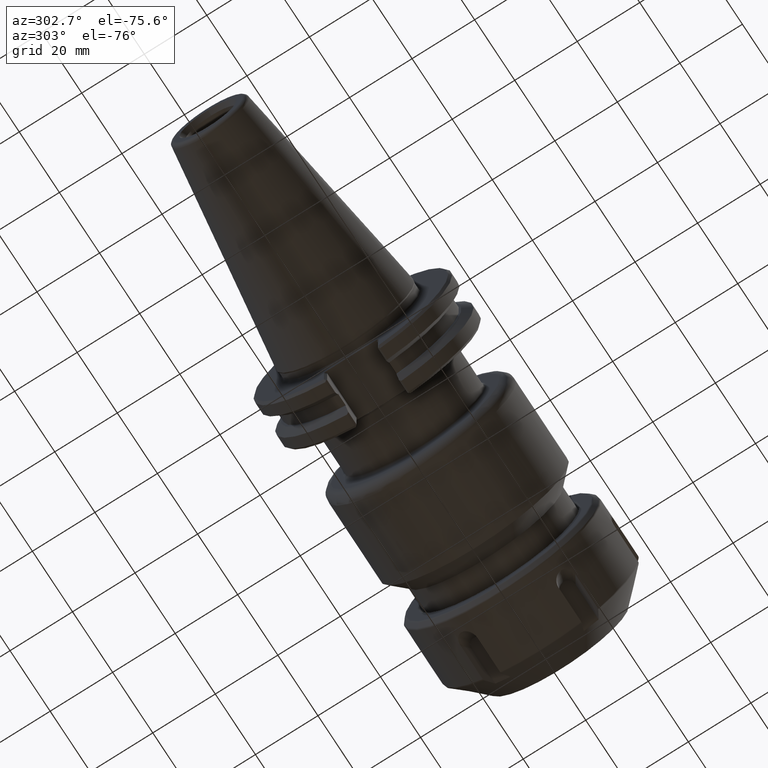
[diagram: clean part render]
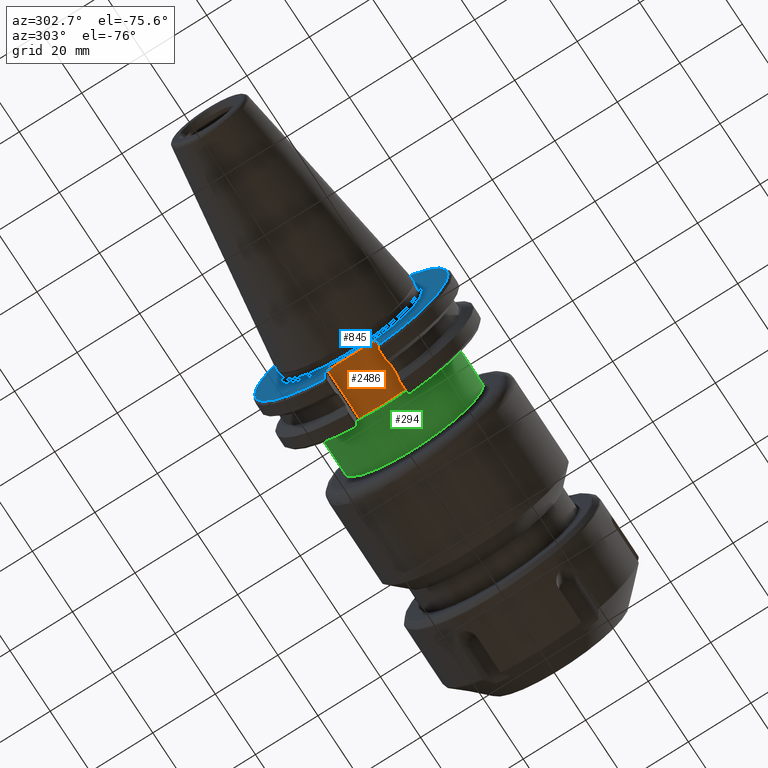
[diagram: same view with three faces highlighted in distinct colors, each labeled with its STEP entity id]
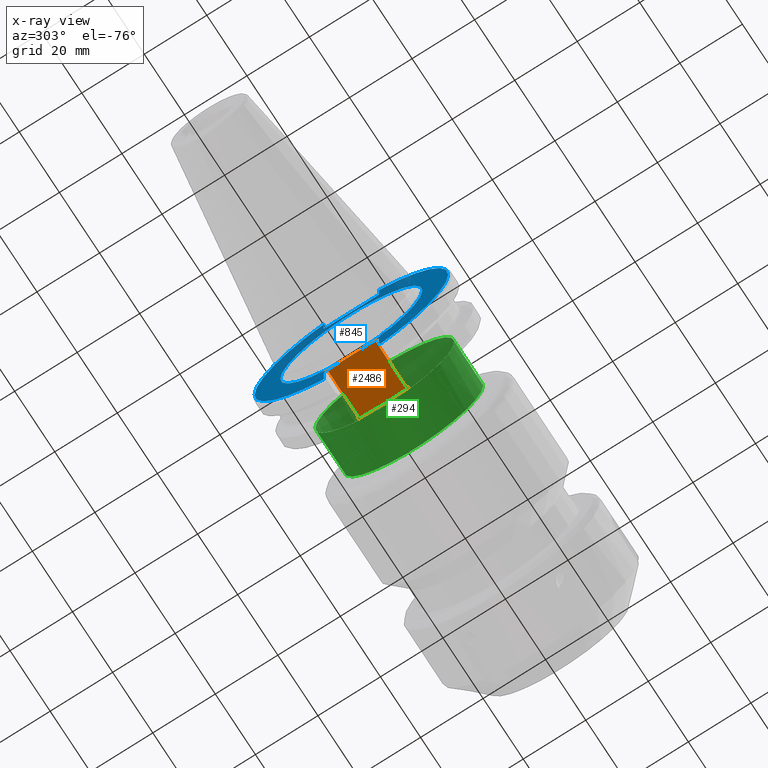
[diagram: x-ray of the same camera — body ghosted, the three highlighted faces saturated]
A machine part, auxiliary view with three faces highlighted in distinct colors.
The next image is the same camera in x-ray (body ghosted, the three faces saturated) — at least one of them is partly hidden behind the body in this view.
Their STEP definitions:

[orange] entity #2486 — the highlighted planar face has unit normal (0, 0, 1).
#300=CARTESIAN_POINT('',(0.75,0.17458808664969,-0.888));
#301=VERTEX_POINT('',#300);
#302=CARTESIAN_POINT('',(0.75,-0.17458808664969,-0.888));
#303=VERTEX_POINT('',#302);
#304=CARTESIAN_POINT('',(0.75,-0.17458808664969,-0.888));
#305=CARTESIAN_POINT('',(0.75,-0.157586351910224,-0.888));
#306=CARTESIAN_POINT('',(0.75064285068752,-0.137194400552612,-0.888));
#307=CARTESIAN_POINT('',(0.752916249322132,-0.082645621945096,-0.888));
#308=CARTESIAN_POINT('',(0.755281585811383,-0.037594396890198,-0.888));
#309=CARTESIAN_POINT('',(0.755281585811383,0.0,-0.888));
#310=CARTESIAN_POINT('',(0.755281585811383,0.037594396890198,-0.888));
#311=CARTESIAN_POINT('',(0.752916249322132,0.082645621945096,-0.888));
#312=CARTESIAN_POINT('',(0.75064285068752,0.137194400552612,-0.888));
#313=CARTESIAN_POINT('',(0.75,0.157586351910224,-0.888));
#314=CARTESIAN_POINT('',(0.75,0.17458808664969,-0.888));
#315=B_SPLINE_CURVE_WITH_KNOTS('',3,(#304,#305,#306,#307,#308,#309,#310,#311,#312,#313,#314),.UNSPECIFIED.,.F.,.U.,(4,2,3,2,4),(2.482720632857079,2.612273851571811,2.898743155875123,3.185212460178435,3.314765678893167),.UNSPECIFIED.);
#316=EDGE_CURVE('',#301,#303,#315,.F.);
#337=CARTESIAN_POINT('',(0.75,0.316715728752876,-0.888));
#338=VERTEX_POINT('',#337);
#339=CARTESIAN_POINT('',(0.75,0.316715728752876,-0.888));
#340=DIRECTION('',(0.0,-1.0,0.0));
#341=VECTOR('',#340,0.142127642103186);
#342=LINE('',#339,#341);
#343=EDGE_CURVE('',#338,#301,#342,.T.);
#430=CARTESIAN_POINT('',(0.75,-0.3167157287522,-0.888));
#431=VERTEX_POINT('',#430);
#439=CARTESIAN_POINT('',(0.75,-0.17458808664969,-0.888));
#440=DIRECTION('',(0.0,-1.0,0.0));
#441=VECTOR('',#440,0.14212764210251);
#442=LINE('',#439,#441);
#443=EDGE_CURVE('',#303,#431,#442,.T.);
#699=CARTESIAN_POINT('',(0.125,-0.11171839597846,-0.888));
#700=VERTEX_POINT('',#699);
#701=CARTESIAN_POINT('',(0.125,0.11171839597846,-0.888));
#702=VERTEX_POINT('',#701);
#703=CARTESIAN_POINT('',(0.125,0.11171839597846,-0.888));
#704=CARTESIAN_POINT('',(0.125,0.101382060526646,-0.888));
#705=CARTESIAN_POINT('',(0.12490012078969,0.088978860126441,-0.888));
#706=CARTESIAN_POINT('',(0.124535784579865,0.054067341164243,-0.888));
#707=CARTESIAN_POINT('',(0.12417190429163,0.024577084562869,-0.888));
#708=CARTESIAN_POINT('',(0.12417190429163,0.0,-0.888));
#709=CARTESIAN_POINT('',(0.12417190429163,-0.024577084562869,-0.888));
#710=CARTESIAN_POINT('',(0.124535784579865,-0.054067341164243,-0.888));
#711=CARTESIAN_POINT('',(0.12490012078969,-0.088978860126441,-0.888));
#712=CARTESIAN_POINT('',(0.125,-0.101382060526646,-0.888));
#713=CARTESIAN_POINT('',(0.125,-0.11171839597846,-0.888));
#714=B_SPLINE_CURVE_WITH_KNOTS('',3,(#703,#704,#705,#706,#707,#708,#709,#710,#711,#712,#713),.UNSPECIFIED.,.F.,.U.,(4,2,3,2,4),(2.310521099154615,2.389283975297438,2.576561359666502,2.763838744035566,2.842601620178389),.UNSPECIFIED.);
#715=EDGE_CURVE('',#700,#702,#714,.F.);
#744=CARTESIAN_POINT('',(0.125,-0.316715728752297,-0.888));
#745=VERTEX_POINT('',#744);
#746=CARTESIAN_POINT('',(0.125,-0.316715728752297,-0.888));
#747=DIRECTION('',(0.0,1.0,0.0));
#748=VECTOR('',#747,0.204997332773838);
#749=LINE('',#746,#748);
#750=EDGE_CURVE('',#745,#700,#749,.T.);
#828=CARTESIAN_POINT('',(0.125,0.316715728752779,-0.888));
#829=VERTEX_POINT('',#828);
#837=CARTESIAN_POINT('',(0.125,0.11171839597846,-0.888));
#838=DIRECTION('',(0.0,1.0,0.0));
#839=VECTOR('',#838,0.204997332774319);
#840=LINE('',#837,#839);
#841=EDGE_CURVE('',#702,#829,#840,.T.);
#1312=CARTESIAN_POINT('',(0.141715728752536,-0.299999999999759,-0.888));
#1313=VERTEX_POINT('',#1312);
#1314=CARTESIAN_POINT('',(0.125,-0.316715728752297,-0.888));
#1315=DIRECTION('',(0.707106781186488,0.707106781186608,0.0));
#1316=VECTOR('',#1315,0.023639610306788);
#1317=LINE('',#1314,#1316);
#1318=EDGE_CURVE('',#745,#1313,#1317,.T.);
#1352=CARTESIAN_POINT('',(0.73328427124746,-0.299999999999663,-0.888));
#1353=VERTEX_POINT('',#1352);
#1354=CARTESIAN_POINT('',(0.141715728752536,-0.299999999999759,-0.888));
#1355=DIRECTION('',(1.0,1.622446E-013,0.0));
#1356=VECTOR('',#1355,0.591568542494924);
#1357=LINE('',#1354,#1356);
#1358=EDGE_CURVE('',#1313,#1353,#1357,.T.);
#1375=CARTESIAN_POINT('',(0.73328427124746,-0.299999999999663,-0.888));
#1376=DIRECTION('',(0.707106781186603,-0.707106781186492,0.0));
#1377=VECTOR('',#1376,0.02363961030679);
#1378=LINE('',#1375,#1377);
#1379=EDGE_CURVE('',#1353,#431,#1378,.T.);
#1541=CARTESIAN_POINT('',(0.733284271247464,0.300000000000338,-0.888));
#1542=VERTEX_POINT('',#1541);
#1543=CARTESIAN_POINT('',(0.75,0.316715728752876,-0.888));
#1544=DIRECTION('',(-0.70710678118649,-0.707106781186605,0.0));
#1545=VECTOR('',#1544,0.023639610306788);
#1546=LINE('',#1543,#1545);
#1547=EDGE_CURVE('',#338,#1542,#1546,.T.);
#1581=CARTESIAN_POINT('',(0.14171572875254,0.300000000000241,-0.888));
#1582=VERTEX_POINT('',#1581);
#1583=CARTESIAN_POINT('',(0.733284271247464,0.300000000000338,-0.888));
#1584=DIRECTION('',(-1.0,-1.623384E-013,0.0));
#1585=VECTOR('',#1584,0.591568542494924);
#1586=LINE('',#1583,#1585);
#1587=EDGE_CURVE('',#1542,#1582,#1586,.T.);
#1604=CARTESIAN_POINT('',(0.14171572875254,0.300000000000241,-0.888));
#1605=DIRECTION('',(-0.707106781186605,0.70710678118649,0.0));
#1606=VECTOR('',#1605,0.023639610306791);
#1607=LINE('',#1604,#1606);
#1608=EDGE_CURVE('',#1582,#829,#1607,.T.);
#2467=CARTESIAN_POINT('',(0.54316303079076,3.065331E-013,-0.888));
#2468=DIRECTION('',(0.0,0.0,1.0));
#2469=DIRECTION('',(1.0,0.0,0.0));
#2470=AXIS2_PLACEMENT_3D('',#2467,#2468,#2469);
#2471=PLANE('',#2470);
#2472=ORIENTED_EDGE('',*,*,#1318,.F.);
#2473=ORIENTED_EDGE('',*,*,#750,.T.);
#2474=ORIENTED_EDGE('',*,*,#715,.T.);
#2475=ORIENTED_EDGE('',*,*,#841,.T.);
#2476=ORIENTED_EDGE('',*,*,#1608,.F.);
#2477=ORIENTED_EDGE('',*,*,#1587,.F.);
#2478=ORIENTED_EDGE('',*,*,#1547,.F.);
#2479=ORIENTED_EDGE('',*,*,#343,.T.);
#2480=ORIENTED_EDGE('',*,*,#316,.T.);
#2481=ORIENTED_EDGE('',*,*,#443,.T.);
#2482=ORIENTED_EDGE('',*,*,#1379,.F.);
#2483=ORIENTED_EDGE('',*,*,#1358,.F.);
#2484=EDGE_LOOP('',(#2472,#2473,#2474,#2475,#2476,#2477,#2478,#2479,#2480,#2481,#2482,#2483));
#2485=FACE_OUTER_BOUND('',#2484,.T.);
#2486=ADVANCED_FACE('',(#2485),#2471,.F.);

[blue] entity #845 — the highlighted planar face has unit normal (-1, 0, 0).
#633=CARTESIAN_POINT('',(0.125,0.316715728752819,0.972));
#634=VERTEX_POINT('',#633);
#643=CARTESIAN_POINT('',(0.125,-0.316715728752257,0.972));
#644=VERTEX_POINT('',#643);
#645=CARTESIAN_POINT('',(0.125,0.316715728752819,0.972));
#646=DIRECTION('',(0.0,-1.0,0.0));
#647=VECTOR('',#646,0.633431457505076);
#648=LINE('',#645,#647);
#649=EDGE_CURVE('',#634,#644,#648,.T.);
#699=CARTESIAN_POINT('',(0.125,-0.11171839597846,-0.888));
#700=VERTEX_POINT('',#699);
#701=CARTESIAN_POINT('',(0.125,0.11171839597846,-0.888));
#702=VERTEX_POINT('',#701);
#717=CARTESIAN_POINT('',(0.125,0.0,0.0));
#718=DIRECTION('',(-1.0,0.0,0.0));
#719=DIRECTION('',(0.0,-1.0,0.0));
#720=AXIS2_PLACEMENT_3D('',#717,#718,#719);
#721=CIRCLE('',#720,0.895);
#722=EDGE_CURVE('',#700,#702,#721,.T.);
#738=CARTESIAN_POINT('',(0.125,1.0625,0.0));
#739=DIRECTION('',(-1.0,0.0,0.0));
#740=DIRECTION('',(0.0,0.0,1.0));
#741=AXIS2_PLACEMENT_3D('',#738,#739,#740);
#742=PLANE('',#741);
#743=ORIENTED_EDGE('',*,*,#722,.F.);
#744=CARTESIAN_POINT('',(0.125,-0.316715728752297,-0.888));
#745=VERTEX_POINT('',#744);
#746=CARTESIAN_POINT('',(0.125,-0.316715728752297,-0.888));
#747=DIRECTION('',(0.0,1.0,0.0));
#748=VECTOR('',#747,0.204997332773838);
#749=LINE('',#746,#748);
#750=EDGE_CURVE('',#745,#700,#749,.T.);
#751=ORIENTED_EDGE('',*,*,#750,.F.);
#752=CARTESIAN_POINT('',(0.125,-0.344999999999762,-0.908));
#753=VERTEX_POINT('',#752);
#754=CARTESIAN_POINT('',(0.125,-0.316715728752297,-0.908));
#755=DIRECTION('',(-1.0,0.0,0.0));
#756=DIRECTION('',(0.0,-1.0,0.0));
#757=AXIS2_PLACEMENT_3D('',#754,#755,#756);
#758=ELLIPSE('',#757,0.028284271247464,0.02);
#759=EDGE_CURVE('',#753,#745,#758,.T.);
#760=ORIENTED_EDGE('',*,*,#759,.F.);
#761=CARTESIAN_POINT('',(0.125,-0.344999999999762,-1.170202973846915));
#762=VERTEX_POINT('',#761);
#763=CARTESIAN_POINT('',(0.125,-0.344999999999762,-1.170202973846915));
#764=DIRECTION('',(0.0,0.0,1.0));
#765=VECTOR('',#764,0.262202973846915);
#766=LINE('',#763,#765);
#767=EDGE_CURVE('',#762,#753,#766,.T.);
#768=ORIENTED_EDGE('',*,*,#767,.F.);
#769=CARTESIAN_POINT('',(0.125,-0.344999999999719,1.170202973846928));
#770=VERTEX_POINT('',#769);
#771=CARTESIAN_POINT('',(0.125,0.0,0.0));
#772=DIRECTION('',(1.0,0.0,0.0));
#773=DIRECTION('',(0.0,-1.0,0.0));
#774=AXIS2_PLACEMENT_3D('',#771,#772,#773);
#775=CIRCLE('',#774,1.22);
#776=EDGE_CURVE('',#770,#762,#775,.T.);
#777=ORIENTED_EDGE('',*,*,#776,.F.);
#778=CARTESIAN_POINT('',(0.125,-0.344999999999719,0.992));
#779=VERTEX_POINT('',#778);
#780=CARTESIAN_POINT('',(0.125,-0.344999999999719,0.992));
#781=DIRECTION('',(0.0,0.0,1.0));
#782=VECTOR('',#781,0.178202973846928);
#783=LINE('',#780,#782);
#784=EDGE_CURVE('',#779,#770,#783,.T.);
#785=ORIENTED_EDGE('',*,*,#784,.F.);
#786=CARTESIAN_POINT('',(0.125,-0.316715728752257,0.992));
#787=DIRECTION('',(-1.0,0.0,0.0));
#788=DIRECTION('',(0.0,-1.0,0.0));
#789=AXIS2_PLACEMENT_3D('',#786,#787,#788);
#790=ELLIPSE('',#789,0.028284271247462,0.02);
#791=EDGE_CURVE('',#644,#779,#790,.T.);
#792=ORIENTED_EDGE('',*,*,#791,.F.);
#793=ORIENTED_EDGE('',*,*,#649,.F.);
#794=CARTESIAN_POINT('',(0.125,0.345000000000281,0.992));
#795=VERTEX_POINT('',#794);
#796=CARTESIAN_POINT('',(0.125,0.316715728752819,0.992));
#797=DIRECTION('',(-1.0,0.0,0.0));
#798=DIRECTION('',(0.0,1.0,0.0));
#799=AXIS2_PLACEMENT_3D('',#796,#797,#798);
#800=ELLIPSE('',#799,0.028284271247462,0.02);
#801=EDGE_CURVE('',#795,#634,#800,.T.);
#802=ORIENTED_EDGE('',*,*,#801,.F.);
#803=CARTESIAN_POINT('',(0.125,0.345000000000281,1.170202973846762));
#804=VERTEX_POINT('',#803);
#805=CARTESIAN_POINT('',(0.125,0.345000000000281,1.170202973846762));
#806=DIRECTION('',(0.0,0.0,-1.0));
#807=VECTOR('',#806,0.178202973846762);
#808=LINE('',#805,#807);
#809=EDGE_CURVE('',#804,#795,#808,.T.);
#810=ORIENTED_EDGE('',*,*,#809,.F.);
#811=CARTESIAN_POINT('',(0.125,0.345000000000239,-1.170202973846775));
#812=VERTEX_POINT('',#811);
#813=CARTESIAN_POINT('',(0.125,0.0,0.0));
#814=DIRECTION('',(1.0,0.0,0.0));
#815=DIRECTION('',(0.0,1.0,0.0));
#816=AXIS2_PLACEMENT_3D('',#813,#814,#815);
#817=CIRCLE('',#816,1.22);
#818=EDGE_CURVE('',#812,#804,#817,.T.);
#819=ORIENTED_EDGE('',*,*,#818,.F.);
#820=CARTESIAN_POINT('',(0.125,0.345000000000239,-0.908));
#821=VERTEX_POINT('',#820);
#822=CARTESIAN_POINT('',(0.125,0.345000000000239,-0.908));
#823=DIRECTION('',(0.0,0.0,-1.0));
#824=VECTOR('',#823,0.262202973846774);
#825=LINE('',#822,#824);
#826=EDGE_CURVE('',#821,#812,#825,.T.);
#827=ORIENTED_EDGE('',*,*,#826,.F.);
#828=CARTESIAN_POINT('',(0.125,0.316715728752779,-0.888));
#829=VERTEX_POINT('',#828);
#830=CARTESIAN_POINT('',(0.125,0.316715728752779,-0.908));
#831=DIRECTION('',(-1.0,0.0,0.0));
#832=DIRECTION('',(0.0,1.0,0.0));
#833=AXIS2_PLACEMENT_3D('',#830,#831,#832);
#834=ELLIPSE('',#833,0.02828427124746,0.02);
#835=EDGE_CURVE('',#829,#821,#834,.T.);
#836=ORIENTED_EDGE('',*,*,#835,.F.);
#837=CARTESIAN_POINT('',(0.125,0.11171839597846,-0.888));
#838=DIRECTION('',(0.0,1.0,0.0));
#839=VECTOR('',#838,0.204997332774319);
#840=LINE('',#837,#839);
#841=EDGE_CURVE('',#702,#829,#840,.T.);
#842=ORIENTED_EDGE('',*,*,#841,.F.);
#843=EDGE_LOOP('',(#743,#751,#760,#768,#777,#785,#792,#793,#802,#810,#819,#827,#836,#842));
#844=FACE_OUTER_BOUND('',#843,.T.);
#845=ADVANCED_FACE('',(#844),#742,.T.);

[green] entity #294 — the highlighted cylindrical surface (bore or boss wall) has radius 22.225 mm, axis along (1, 0, 0).
#260=CARTESIAN_POINT('',(1.35,0.875,0.0));
#261=VERTEX_POINT('',#260);
#262=CARTESIAN_POINT('',(1.35,0.0,0.0));
#263=DIRECTION('',(1.0,0.0,0.0));
#264=DIRECTION('',(0.0,-1.0,0.0));
#265=AXIS2_PLACEMENT_3D('',#262,#263,#264);
#266=CIRCLE('',#265,0.875);
#267=EDGE_CURVE('',#261,#261,#266,.T.);
#275=CARTESIAN_POINT('',(1.065,0.0,0.0));
#276=DIRECTION('',(1.0,0.0,0.0));
#277=DIRECTION('',(-1.624514E-013,1.0,0.0));
#278=AXIS2_PLACEMENT_3D('',#275,#276,#277);
#279=CYLINDRICAL_SURFACE('',#278,0.875);
#280=CARTESIAN_POINT('',(0.78,0.875,-2.143132E-016));
#281=VERTEX_POINT('',#280);
#282=CARTESIAN_POINT('',(0.78,0.0,0.0));
#283=DIRECTION('',(-1.0,0.0,0.0));
#284=DIRECTION('',(0.0,-1.0,0.0));
#285=AXIS2_PLACEMENT_3D('',#282,#283,#284);
#286=CIRCLE('',#285,0.875);
#287=EDGE_CURVE('',#281,#281,#286,.T.);
#288=ORIENTED_EDGE('',*,*,#287,.F.);
#289=EDGE_LOOP('',(#288));
#290=FACE_OUTER_BOUND('',#289,.T.);
#291=ORIENTED_EDGE('',*,*,#267,.F.);
#292=EDGE_LOOP('',(#291));
#293=FACE_BOUND('',#292,.T.);
#294=ADVANCED_FACE('',(#290,#293),#279,.T.);